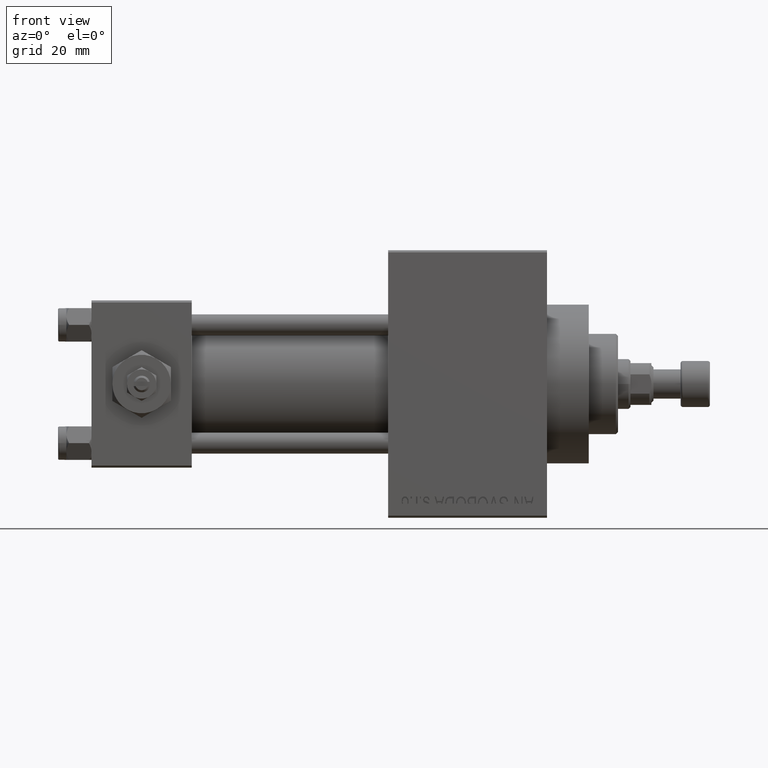
[diagram: clean part render]
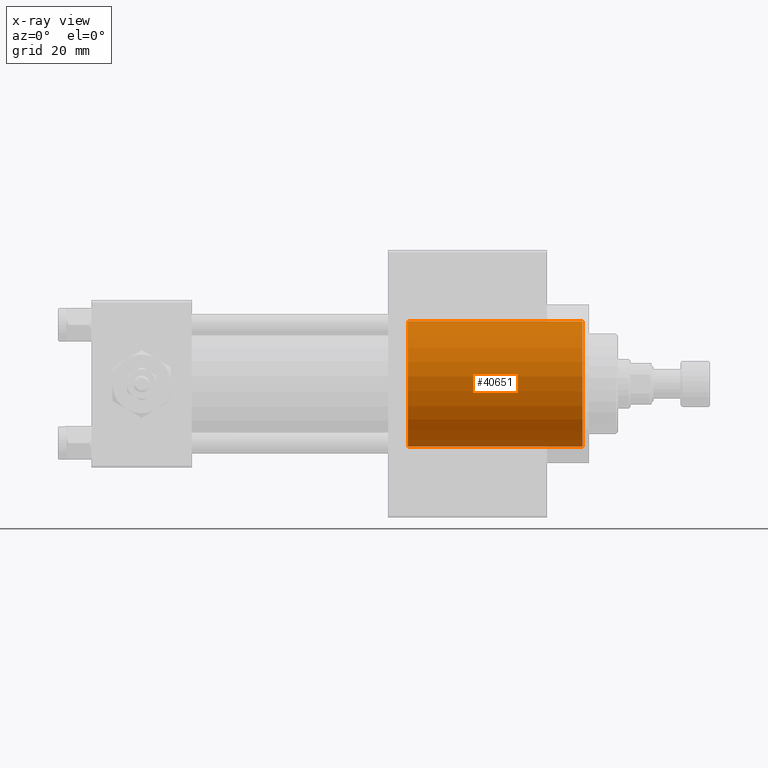
[diagram: x-ray — body ghosted, one internal face saturated and labeled with its STEP entity id]
A machine part, front view, then the same camera in x-ray: the body is ghosted and one INTERNAL B-rep face — a face not visible from any outside direction — is saturated and labeled: STEP entity #40651.
In plain terms, the highlighted cylindrical surface (partial cylindrical patch) has radius 15 mm, axis along (1, 0, 0).
Its self-contained STEP definition (entity closure, byte-faithful):
#297 = CARTESIAN_POINT ( 'NONE',  ( 75.73999999999999488, 0.000000000000000000, -15.00000000000000000 ) ) ;
#2387 = VERTEX_POINT ( 'NONE', #12472 ) ;
#2564 = CARTESIAN_POINT ( 'NONE',  ( 75.73999999999999488, 1.836970198721029589E-15, 15.00000000000000000 ) ) ;
#3561 = DIRECTION ( 'NONE',  ( 1.000000000000000000, -0.000000000000000000, -0.000000000000000000 ) ) ;
#5821 = DIRECTION ( 'NONE',  ( 1.000000000000000000, -0.000000000000000000, -0.000000000000000000 ) ) ;
#6111 = CIRCLE ( 'NONE', #39623, 15.00000000000000000 ) ;
#6385 = ORIENTED_EDGE ( 'NONE', *, *, #27424, .F. ) ;
#12472 = CARTESIAN_POINT ( 'NONE',  ( 75.73999999999999488, 1.836970198721029589E-15, 15.00000000000000000 ) ) ;
#12535 = VECTOR ( 'NONE', #5821, 1000.000000000000000 ) ;
#16897 = VERTEX_POINT ( 'NONE', #21856 ) ;
#17743 = EDGE_LOOP ( 'NONE', ( #20965, #42476, #23233, #6385 ) ) ;
#19592 = DIRECTION ( 'NONE',  ( 1.000000000000000000, -0.000000000000000000, -0.000000000000000000 ) ) ;
#20965 = ORIENTED_EDGE ( 'NONE', *, *, #34028, .F. ) ;
#21856 = CARTESIAN_POINT ( 'NONE',  ( 117.5000000000000000, 0.000000000000000000, -15.00000000000000000 ) ) ;
#22029 = VERTEX_POINT ( 'NONE', #28423 ) ;
#23233 = ORIENTED_EDGE ( 'NONE', *, *, #33490, .T. ) ;
#24812 = LINE ( 'NONE', #2564, #12535 ) ;
#25954 = CARTESIAN_POINT ( 'NONE',  ( 75.73999999999999488, 0.000000000000000000, -15.00000000000000000 ) ) ;
#26611 = CARTESIAN_POINT ( 'NONE',  ( 75.73999999999999488, 0.000000000000000000, 0.000000000000000000 ) ) ;
#26980 = AXIS2_PLACEMENT_3D ( 'NONE', #26611, #19592, #46075 ) ;
#27424 = EDGE_CURVE ( 'NONE', #48589, #16897, #34265, .T. ) ;
#27661 = CIRCLE ( 'NONE', #35617, 15.00000000000000000 ) ;
#28423 = CARTESIAN_POINT ( 'NONE',  ( 117.5000000000000000, 1.836970198721029589E-15, 15.00000000000000000 ) ) ;
#29907 = DIRECTION ( 'NONE',  ( 1.000000000000000000, 0.000000000000000000, 0.000000000000000000 ) ) ;
#30583 = CYLINDRICAL_SURFACE ( 'NONE', #26980, 15.00000000000000000 ) ;
#33325 = DIRECTION ( 'NONE',  ( 0.000000000000000000, 0.000000000000000000, -1.000000000000000000 ) ) ;
#33490 = EDGE_CURVE ( 'NONE', #22029, #16897, #27661, .T. ) ;
#34028 = EDGE_CURVE ( 'NONE', #2387, #48589, #6111, .T. ) ;
#34060 = DIRECTION ( 'NONE',  ( 1.000000000000000000, 0.000000000000000000, 0.000000000000000000 ) ) ;
#34123 = CARTESIAN_POINT ( 'NONE',  ( 75.73999999999999488, 0.000000000000000000, 0.000000000000000000 ) ) ;
#34265 = LINE ( 'NONE', #297, #34585 ) ;
#34440 = EDGE_CURVE ( 'NONE', #2387, #22029, #24812, .T. ) ;
#34585 = VECTOR ( 'NONE', #3561, 1000.000000000000000 ) ;
#35617 = AXIS2_PLACEMENT_3D ( 'NONE', #41071, #34060, #33325 ) ;
#39623 = AXIS2_PLACEMENT_3D ( 'NONE', #34123, #29907, #45144 ) ;
#40651 = ADVANCED_FACE ( 'NONE', ( #41587 ), #30583, .F. ) ;
#41071 = CARTESIAN_POINT ( 'NONE',  ( 117.5000000000000000, 0.000000000000000000, 0.000000000000000000 ) ) ;
#41587 = FACE_OUTER_BOUND ( 'NONE', #17743, .T. ) ;
#42476 = ORIENTED_EDGE ( 'NONE', *, *, #34440, .T. ) ;
#45144 = DIRECTION ( 'NONE',  ( 0.000000000000000000, 0.000000000000000000, -1.000000000000000000 ) ) ;
#46075 = DIRECTION ( 'NONE',  ( 0.000000000000000000, 0.000000000000000000, -1.000000000000000000 ) ) ;
#48589 = VERTEX_POINT ( 'NONE', #25954 ) ;